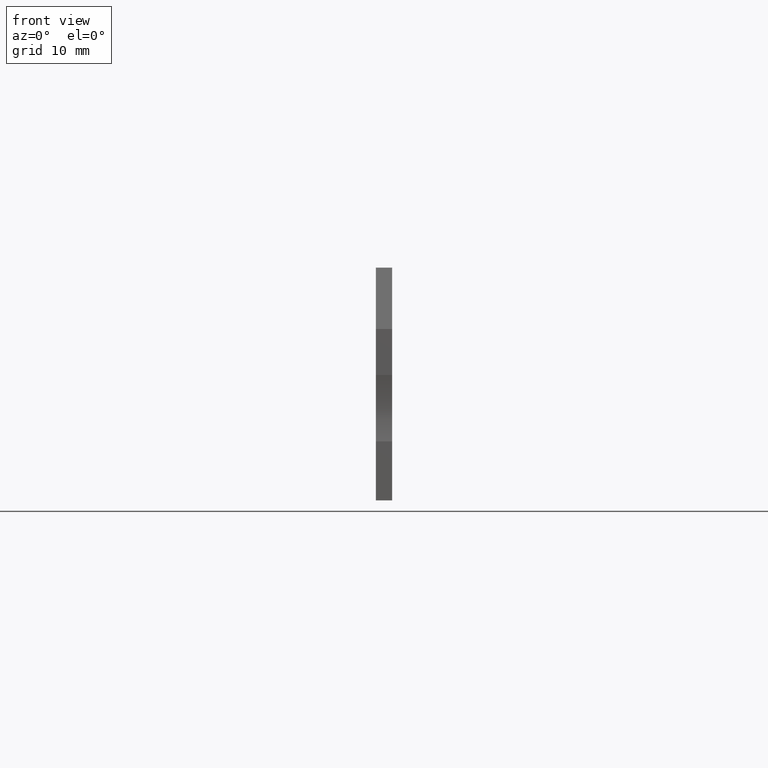
[diagram: clean part render]
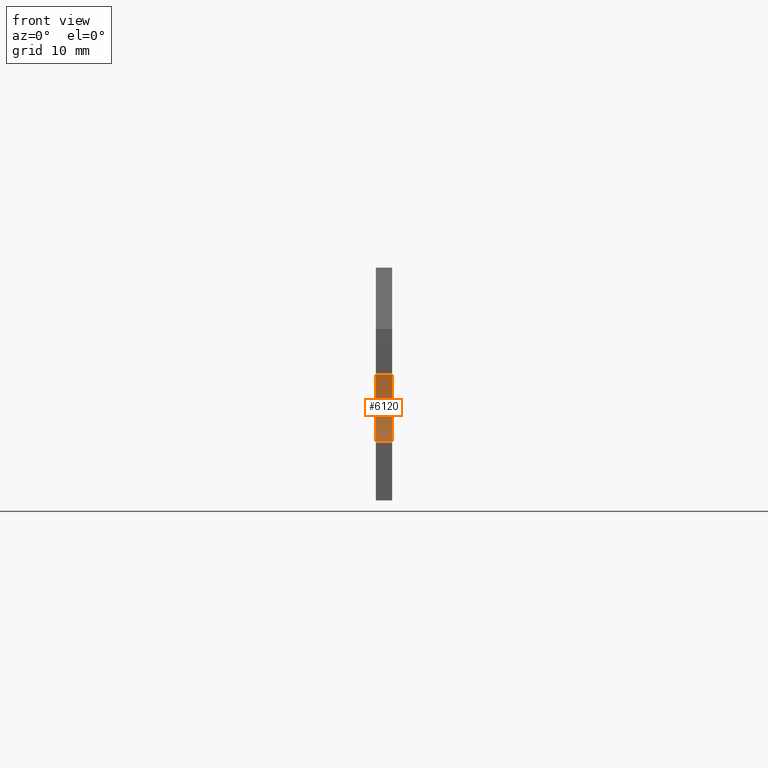
[diagram: same view with one face highlighted and labeled with its STEP entity id]
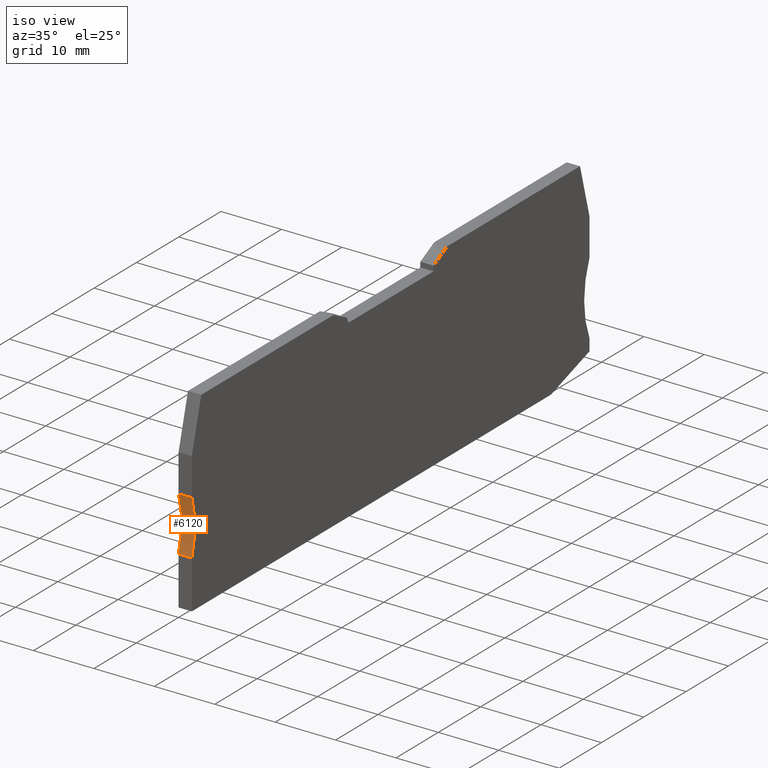
[diagram: same view with one face highlighted and labeled with its STEP entity id]
A machine part, front view. The second image highlights one B-rep face of the part: STEP entity #6120.
A second angle (iso view) of the same face is appended — the face is thin or edge-on in the first view.
In plain terms, the highlighted cylindrical surface (partial cylindrical patch) has radius 15 mm, axis along (1, -0, 0).
Its self-contained STEP definition (entity closure, byte-faithful):
#1470=CARTESIAN_POINT('',(-8.87031917530946,-30.2000000000115,
2.19999999999839));
#1480=VERTEX_POINT('',#1470);
#1510=CARTESIAN_POINT('',(-23.1794071965627,-25.7000000000085,
2.19999999999839));
#1520=DIRECTION('',(0.,0.,1.));
#1530=DIRECTION('',(1.,0.,0.));
#1540=AXIS2_PLACEMENT_3D('',#1510,#1520,#1530);
#1550=CIRCLE('',#1540,15.);
#1560=CARTESIAN_POINT('',(-8.87031917530947,-21.2000000000055,
2.19999999999839));
#1570=VERTEX_POINT('',#1560);
#1580=EDGE_CURVE('',#1480,#1570,#1550,.T.);
#5110=CARTESIAN_POINT('',(-8.87031917530946,-30.2000000000115,
-3.68594044175552E-14));
#5120=VERTEX_POINT('',#5110);
#5150=CARTESIAN_POINT('',(-8.87031917530946,-30.2000000000115,
2.19999999999997));
#5160=DIRECTION('',(0.,0.,1.));
#5170=VECTOR('',#5160,1.);
#5180=LINE('',#5150,#5170);
#5190=EDGE_CURVE('',#5120,#1480,#5180,.T.);
#5490=CARTESIAN_POINT('',(-8.87031917530947,-21.2000000000055,
-3.68594044175552E-14));
#5500=VERTEX_POINT('',#5490);
#5530=CARTESIAN_POINT('',(-23.1794071965627,-25.7000000000085,
-3.68594044175552E-14));
#5540=DIRECTION('',(0.,0.,1.));
#5550=DIRECTION('',(1.,0.,0.));
#5560=AXIS2_PLACEMENT_3D('',#5530,#5540,#5550);
#5570=CIRCLE('',#5560,15.);
#5580=EDGE_CURVE('',#5120,#5500,#5570,.T.);
#5960=CARTESIAN_POINT('',(-23.1794071965627,-25.7000000000085,
2.19999999999997));
#5970=DIRECTION('',(0.,0.,1.));
#5980=DIRECTION('',(1.,0.,0.));
#5990=AXIS2_PLACEMENT_3D('',#5960,#5970,#5980);
#6000=CYLINDRICAL_SURFACE('',#5990,15.);
#6010=ORIENTED_EDGE('',*,*,#5190,.T.);
#6020=ORIENTED_EDGE('',*,*,#5580,.F.);
#6030=CARTESIAN_POINT('',(-8.87031917530947,-21.2000000000055,
2.19999999999997));
#6040=DIRECTION('',(0.,0.,1.));
#6050=VECTOR('',#6040,1.);
#6060=LINE('',#6030,#6050);
#6070=EDGE_CURVE('',#5500,#1570,#6060,.T.);
#6080=ORIENTED_EDGE('',*,*,#6070,.F.);
#6090=ORIENTED_EDGE('',*,*,#1580,.T.);
#6100=EDGE_LOOP('',(#6090,#6080,#6020,#6010));
#6110=FACE_OUTER_BOUND('',#6100,.T.);
#6120=ADVANCED_FACE('',(#6110),#6000,.F.);